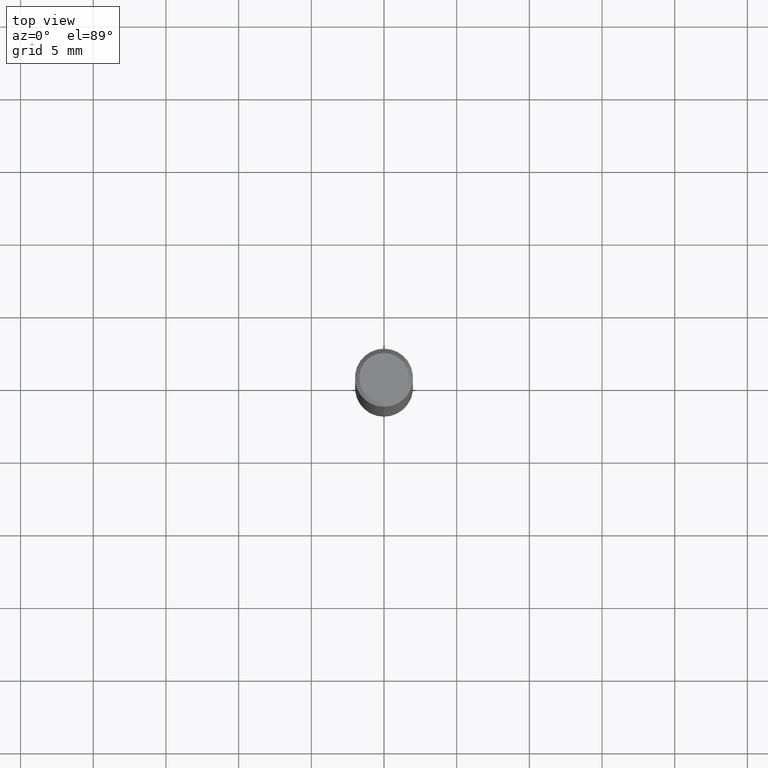
[diagram: clean part render]
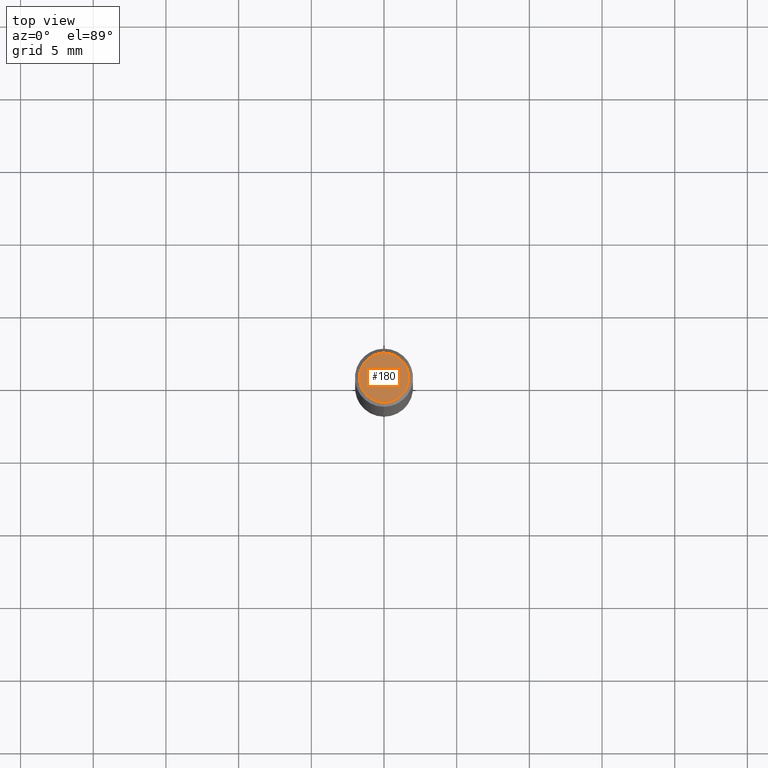
[diagram: same view with one face highlighted and labeled with its STEP entity id]
A machine part, top view. The second image highlights one B-rep face of the part: STEP entity #180.
In plain terms, the highlighted planar face has unit normal (-0, 0, 1).
Its self-contained STEP definition (entity closure, byte-faithful):
#90=EDGE_CURVE('',#114,#142,#211,.T.);
#114=VERTEX_POINT('',#236);
#142=VERTEX_POINT('',#269);
#180=ADVANCED_FACE('',(#314),#315,.T.);
#182=EDGE_CURVE('',#142,#114,#317,.T.);
#211=CIRCLE('',#341,1.7);
#236=CARTESIAN_POINT('',(0.0,1.7,0.0));
#269=CARTESIAN_POINT('',(2.08183080149804E-016,-1.7,0.0));
#314=FACE_OUTER_BOUND('',#466,.T.);
#315=PLANE('',#467);
#317=CIRCLE('',#470,1.7);
#341=AXIS2_PLACEMENT_3D('',#477,#478,#479);
#466=EDGE_LOOP('',(#615,#616));
#467=AXIS2_PLACEMENT_3D('',#617,#618,#619);
#470=AXIS2_PLACEMENT_3D('',#620,#621,#622);
#477=CARTESIAN_POINT('',(0.0,0.0,0.0));
#478=DIRECTION('',(0.0,0.0,-1.0));
#479=DIRECTION('',(0.0,1.0,0.0));
#615=ORIENTED_EDGE('',*,*,#90,.F.);
#616=ORIENTED_EDGE('',*,*,#182,.F.);
#617=CARTESIAN_POINT('',(0.0,0.85,0.0));
#618=DIRECTION('',(-0.0,0.0,1.0));
#619=DIRECTION('',(0.0,-1.0,0.0));
#620=CARTESIAN_POINT('',(0.0,0.0,0.0));
#621=DIRECTION('',(0.0,0.0,-1.0));
#622=DIRECTION('',(0.0,1.0,0.0));